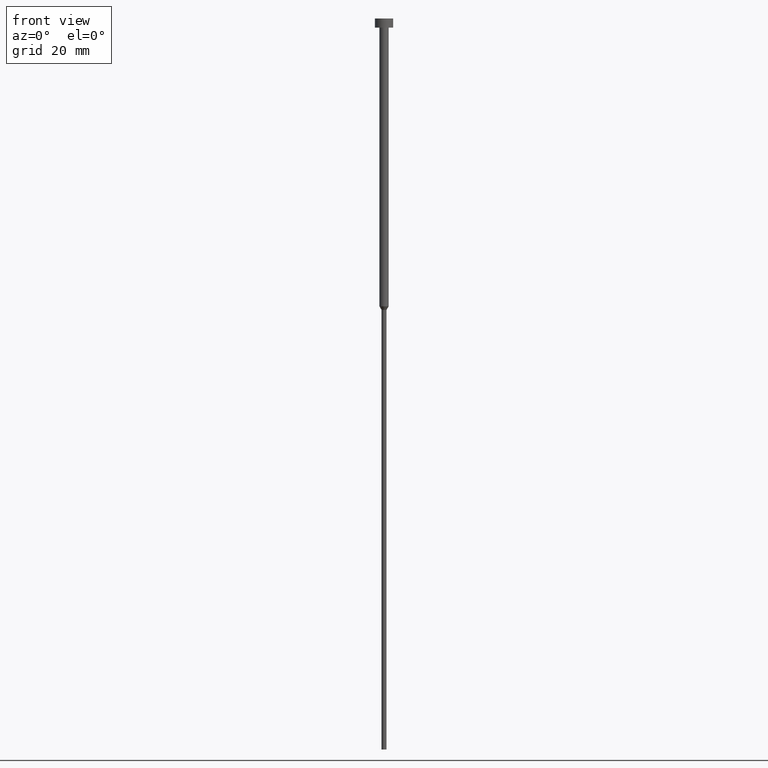
[diagram: clean part render]
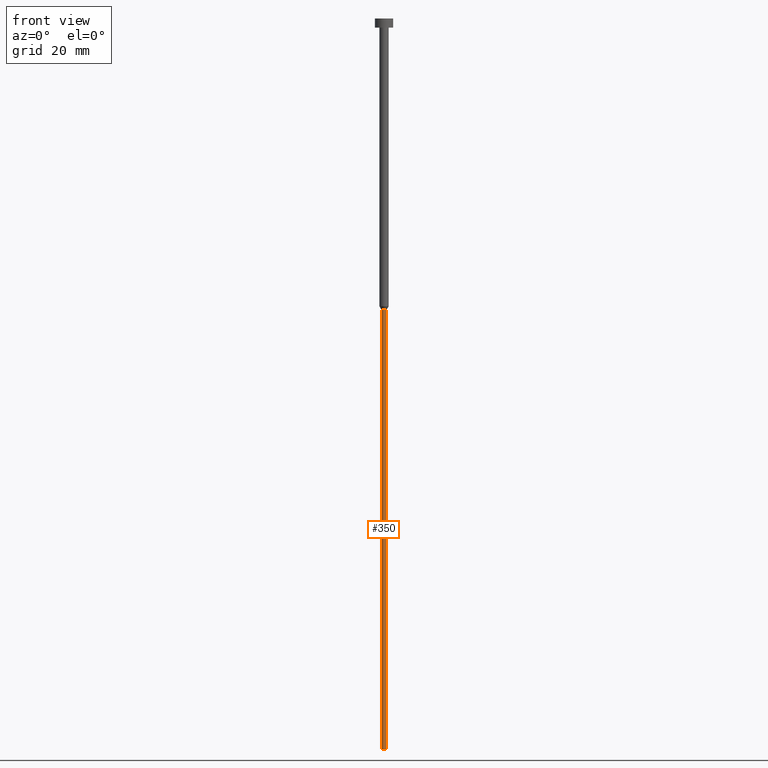
[diagram: same view with one face highlighted and labeled with its STEP entity id]
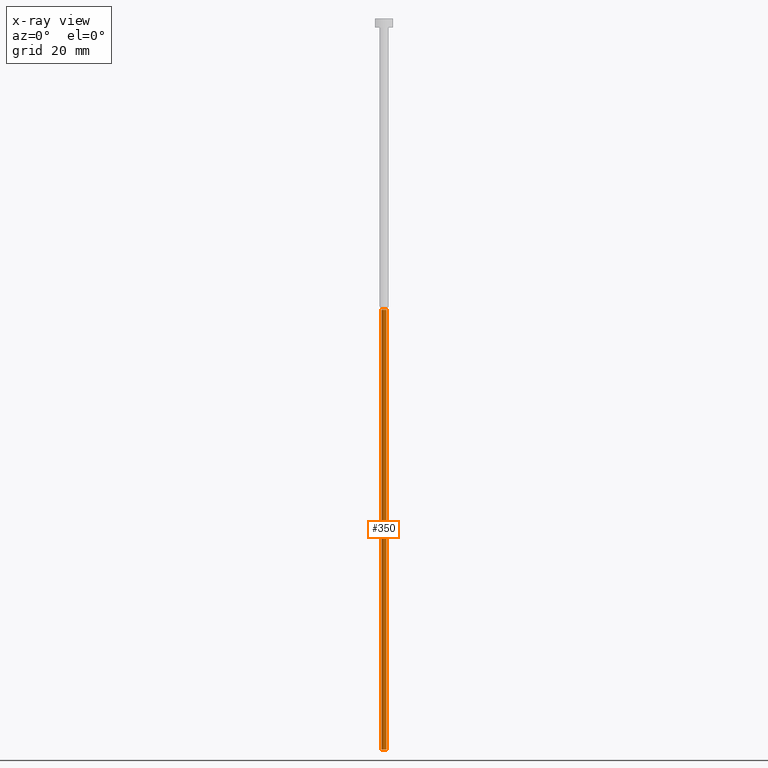
[diagram: x-ray of the same camera — body ghosted, the highlighted face saturated]
A machine part, front view. The second image highlights one B-rep face of the part: STEP entity #350.
The next image is the same camera in x-ray: the body ghosted, the highlighted face saturated — about 0% of this face is hidden behind the body in this view.
In plain terms, the highlighted cylindrical surface (edge-blend (fillet) strip) has radius 0.55 mm, axis along (-0, -0, 1).
Its self-contained STEP definition (entity closure, byte-faithful):
#21 = EDGE_CURVE ( 'NONE', #149, #54, #111, .T. ) ;
#28 = EDGE_CURVE ( 'NONE', #54, #232, #191, .T. ) ;
#34 = CARTESIAN_POINT ( 'NONE',  ( 0.000000000000000000, 0.000000000000000000, -160.0000000000000000 ) ) ;
#54 = VERTEX_POINT ( 'NONE', #347 ) ;
#59 = VECTOR ( 'NONE', #209, 1000.000000000000000 ) ;
#70 = DIRECTION ( 'NONE',  ( -0.000000000000000000, -0.000000000000000000, 1.000000000000000000 ) ) ;
#74 = CARTESIAN_POINT ( 'NONE',  ( 0.000000000000000000, 0.000000000000000000, -63.77942286340600475 ) ) ;
#76 = VERTEX_POINT ( 'NONE', #266 ) ;
#85 = AXIS2_PLACEMENT_3D ( 'NONE', #262, #333, #95 ) ;
#95 = DIRECTION ( 'NONE',  ( 1.000000000000000000, 0.000000000000000000, 0.000000000000000000 ) ) ;
#97 = DIRECTION ( 'NONE',  ( 1.000000000000000000, 0.000000000000000000, 0.000000000000000000 ) ) ;
#111 = LINE ( 'NONE', #296, #59 ) ;
#123 = ORIENTED_EDGE ( 'NONE', *, *, #28, .F. ) ;
#124 = CARTESIAN_POINT ( 'NONE',  ( 0.5499999999999999334, 0.000000000000000000, 0.000000000000000000 ) ) ;
#125 = FACE_OUTER_BOUND ( 'NONE', #204, .T. ) ;
#149 = VERTEX_POINT ( 'NONE', #329 ) ;
#150 = VECTOR ( 'NONE', #70, 1000.000000000000000 ) ;
#153 = LINE ( 'NONE', #124, #150 ) ;
#175 = CARTESIAN_POINT ( 'NONE',  ( 0.5500000000000000444, 0.000000000000000000, -63.77942286340600475 ) ) ;
#179 = DIRECTION ( 'NONE',  ( -0.000000000000000000, -0.000000000000000000, 1.000000000000000000 ) ) ;
#182 = ORIENTED_EDGE ( 'NONE', *, *, #218, .T. ) ;
#183 = AXIS2_PLACEMENT_3D ( 'NONE', #34, #310, #97 ) ;
#191 = CIRCLE ( 'NONE', #311, 0.5500000000000000444 ) ;
#204 = EDGE_LOOP ( 'NONE', ( #335, #236, #182, #123 ) ) ;
#209 = DIRECTION ( 'NONE',  ( -0.000000000000000000, -0.000000000000000000, 1.000000000000000000 ) ) ;
#218 = EDGE_CURVE ( 'NONE', #76, #232, #153, .T. ) ;
#232 = VERTEX_POINT ( 'NONE', #175 ) ;
#236 = ORIENTED_EDGE ( 'NONE', *, *, #320, .T. ) ;
#244 = DIRECTION ( 'NONE',  ( 1.000000000000000000, 0.000000000000000000, 0.000000000000000000 ) ) ;
#262 = CARTESIAN_POINT ( 'NONE',  ( 0.000000000000000000, 0.000000000000000000, 0.000000000000000000 ) ) ;
#266 = CARTESIAN_POINT ( 'NONE',  ( 0.5499999999999999334, 0.000000000000000000, -160.0000000000000000 ) ) ;
#286 = CYLINDRICAL_SURFACE ( 'NONE', #85, 0.5499999999999999334 ) ;
#296 = CARTESIAN_POINT ( 'NONE',  ( -0.5499999999999999334, 6.735557395310441284E-17, 0.000000000000000000 ) ) ;
#310 = DIRECTION ( 'NONE',  ( -0.000000000000000000, -0.000000000000000000, 1.000000000000000000 ) ) ;
#311 = AXIS2_PLACEMENT_3D ( 'NONE', #74, #179, #244 ) ;
#320 = EDGE_CURVE ( 'NONE', #149, #76, #334, .T. ) ;
#329 = CARTESIAN_POINT ( 'NONE',  ( -0.5499999999999999334, 6.735557395310441284E-17, -160.0000000000000000 ) ) ;
#333 = DIRECTION ( 'NONE',  ( -0.000000000000000000, -0.000000000000000000, 1.000000000000000000 ) ) ;
#334 = CIRCLE ( 'NONE', #183, 0.5499999999999999334 ) ;
#335 = ORIENTED_EDGE ( 'NONE', *, *, #21, .F. ) ;
#347 = CARTESIAN_POINT ( 'NONE',  ( -0.5500000000000000444, 6.735557395310442516E-17, -63.77942286340600475 ) ) ;
#350 = ADVANCED_FACE ( 'NONE', ( #125 ), #286, .T. ) ;